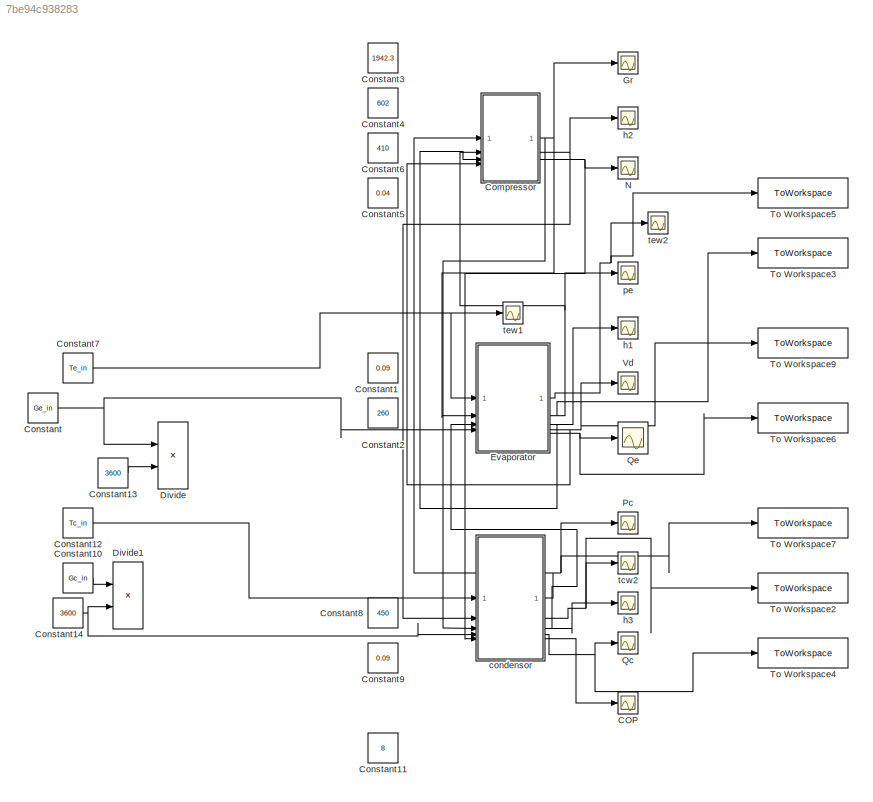
MODEL slx_7be94c938283
KIND model
CONFIG AbsTol = auto
CONFIG EnableMultiTasking = off
CONFIG FixedStep = 0.5
CONFIG MaxStep = auto
CONFIG MinStep = auto
CONFIG RelTol = 1e-3
CONFIG SampleTimeConstraint = Unconstrained
CONFIG SolverName = VariableStepAuto
CONFIG StartTime = 0.0
CONFIG StopTime = 100.0
WORKSPACE source: mxarray member
WORKSPACE c: Simulink.Parameter (value not decoded)
BLOCK [Scope] COP
  Floating = off
  NumInputPorts = 1
  ScopeSpecificationString = Simulink.scopes.TimeScopeBlockCfg('CurrentConfiguration', extmgr.ConfigurationSet(extmgr.Configuration('Core','General UI',true),extmgr.Configuration('Core','Source UI',true),extmgr.Configuration('Sources','WiredSimulink',true,'DataLoggingVariableName','ScopeData8'),extmgr.Configuration('Visuals','Time Domain',true,'SerializedDisplays',{struct('MinYLimReal','3.29992','MaxYLimReal','7.65139','YLabe...<+1416ch>
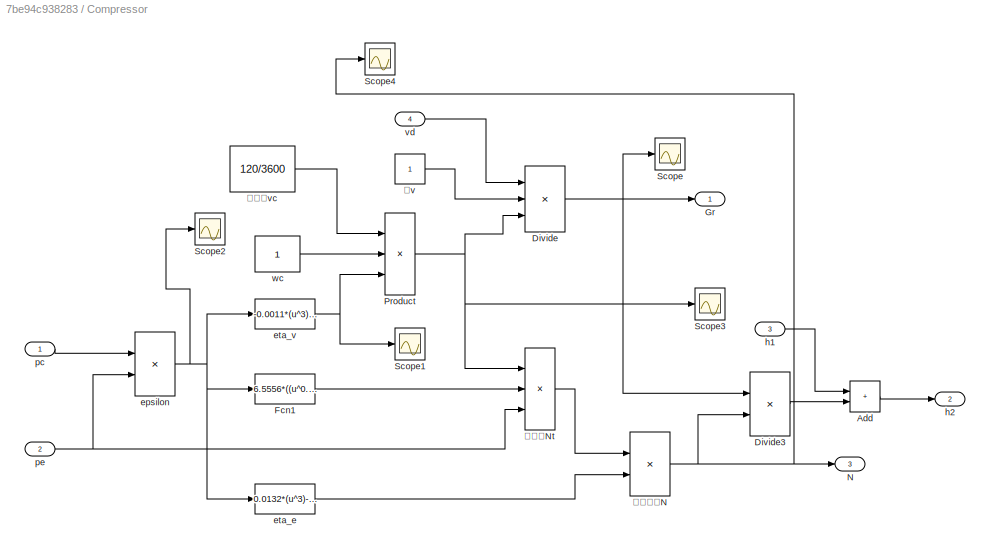
BLOCK [SubSystem] Compressor
BLOCK [Sum] Compressor/Add
  IconShape = rectangular
BLOCK [Product] Compressor/Divide
  Inputs = //*
BLOCK [Product] Compressor/Divide3
  Inputs = /*
BLOCK [Fcn] Compressor/Fcn1
  Expr = 6.5556*((u^0.1525)-1)
BLOCK [Outport] Compressor/Gr
BLOCK [Outport] Compressor/N
  Port = 3
BLOCK [Product] Compressor/Product
  Inputs = 3
BLOCK [Scope] Compressor/Scope
  Floating = off
  NumInputPorts = 1
  ScopeSpecificationString = Simulink.scopes.TimeScopeBlockCfg('CurrentConfiguration', extmgr.ConfigurationSet(extmgr.Configuration('Core','General UI',true),extmgr.Configuration('Core','Source UI',true),extmgr.Configuration('Sources','WiredSimulink',true,'DataLoggingVariableName','ScopeData6'),extmgr.Configuration('Visuals','Time Domain',true,'SerializedDisplays',{struct('MinYLimReal','0.05827','MaxYLimReal','0.25827','YLabe...<+1440ch>
BLOCK [Scope] Compressor/Scope1
  Floating = off
  NumInputPorts = 1
  ScopeSpecificationString = Simulink.scopes.TimeScopeBlockCfg('CurrentConfiguration', extmgr.ConfigurationSet(extmgr.Configuration('Core','General UI',true),extmgr.Configuration('Core','Source UI',true),extmgr.Configuration('Sources','WiredSimulink',true,'DataLoggingVariableName','ScopeData7'),extmgr.Configuration('Visuals','Time Domain',true,'SerializedDisplays',{struct('MinYLimReal','0.77772','MaxYLimReal','0.92904','YLabe...<+1381ch>
BLOCK [Scope] Compressor/Scope2
  Floating = off
  NumInputPorts = 1
  ScopeSpecificationString = Simulink.scopes.TimeScopeBlockCfg('CurrentConfiguration', extmgr.ConfigurationSet(extmgr.Configuration('Core','General UI',true),extmgr.Configuration('Core','Source UI',true),extmgr.Configuration('Sources','WiredSimulink',true,'DataLoggingVariableName','ScopeData15'),extmgr.Configuration('Visuals','Time Domain',true,'SerializedDisplays',{struct('MinYLimReal','0','MaxYLimReal','3','YLabelReal','','...<+1389ch>
BLOCK [Scope] Compressor/Scope3
  Floating = off
  NumInputPorts = 1
  ScopeSpecificationString = Simulink.scopes.TimeScopeBlockCfg('CurrentConfiguration', extmgr.ConfigurationSet(extmgr.Configuration('Core','General UI',true),extmgr.Configuration('Core','Source UI',true),extmgr.Configuration('Sources','WiredSimulink',true,'DataLoggingVariableName','ScopeData16'),extmgr.Configuration('Visuals','Time Domain',true,'SerializedDisplays',{struct('MinYLimReal','0','MaxYLimReal','0.1','YLabelReal',''...<+1392ch>
BLOCK [Scope] Compressor/Scope4
  Floating = off
  NumInputPorts = 1
  ScopeSpecificationString = Simulink.scopes.TimeScopeBlockCfg('CurrentConfiguration', extmgr.ConfigurationSet(extmgr.Configuration('Core','General UI',true),extmgr.Configuration('Core','Source UI',true),extmgr.Configuration('Sources','WiredSimulink',true,'DataLoggingVariableName','ScopeData1'),extmgr.Configuration('Visuals','Time Domain',true,'SerializedDisplays',{struct('MinYLimReal','-1.44659','MaxYLimReal','13.0193','YLab...<+1399ch>
BLOCK [Product] Compressor/epsilon
  Inputs = */
BLOCK [Fcn] Compressor/eta_e
  Expr = 0.0132*(u^3)-0.1677*(u^2)+0.6499*u-0.0924
BLOCK [Fcn] Compressor/eta_v
  Expr = -0.0011*(u^3)+0.0105*u*u-0.0539*u+1.0132
BLOCK [Inport] Compressor/h1
  Port = 3
BLOCK [Outport] Compressor/h2
  Port = 2
BLOCK [Inport] Compressor/pc
BLOCK [Inport] Compressor/pe
  Port = 2
BLOCK [Inport] Compressor/vd
  Port = 4
BLOCK [Constant] Compressor/wc
BLOCK [Constant] Compressor/入v
BLOCK [Product] Compressor/实际功率N
  Inputs = */
BLOCK [Constant] Compressor/排气量vc
  Value = 120/3600
BLOCK [Product] Compressor/轴功率Nt
  Inputs = 3
BLOCK [Constant] Constant
  Value = Ge_in
BLOCK [Constant] Constant1
  Value = 0.09
BLOCK [Constant] Constant10
  Value = Gc_in
BLOCK [Constant] Constant11
  Value = 8
BLOCK [Constant] Constant12
  Value = Tc_in
BLOCK [Constant] Constant13
  Value = 3600
BLOCK [Constant] Constant14
  Value = 3600
BLOCK [Constant] Constant2
  Value = 260
BLOCK [Constant] Constant3
  Value = 1942.3
BLOCK [Constant] Constant4
  Value = 602
BLOCK [Constant] Constant5
  Value = 0.04
BLOCK [Constant] Constant6
  Value = 410
BLOCK [Constant] Constant7
  Value = Te_in
BLOCK [Constant] Constant8
  Value = 450
BLOCK [Constant] Constant9
  Value = 0.09
BLOCK [Product] Divide
  Inputs = */
BLOCK [Product] Divide1
  Inputs = */
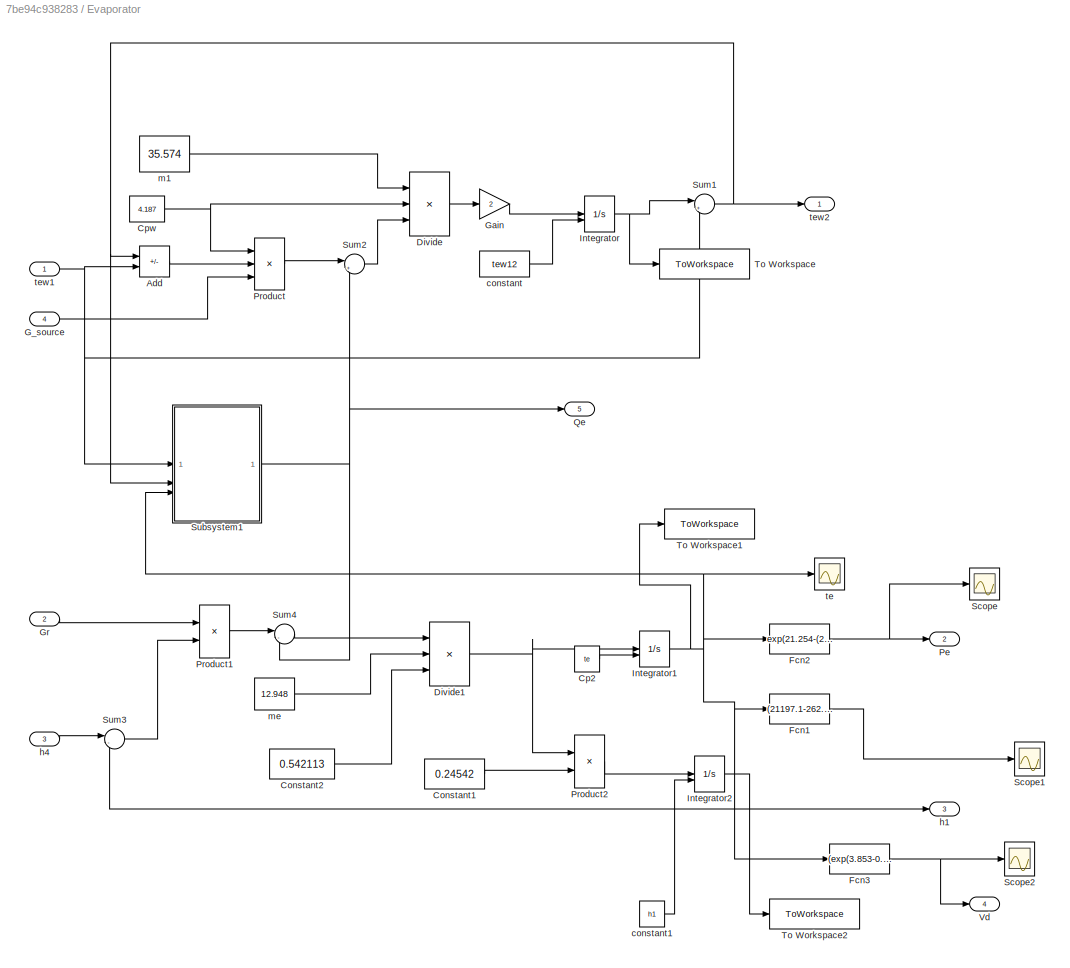
BLOCK [SubSystem] Evaporator
BLOCK [Sum] Evaporator/Add
  IconShape = rectangular
  Inputs = -+
BLOCK [Constant] Evaporator/Constant1
  Value = 0.24542
BLOCK [Constant] Evaporator/Constant2
  Value = 0.542113
BLOCK [Constant] Evaporator/Cp2
  Value = te
BLOCK [Constant] Evaporator/Cpw
  Value = 4.187
BLOCK [Product] Evaporator/Divide
  Inputs = //*
BLOCK [Product] Evaporator/Divide1
  Inputs = *//
BLOCK [Fcn] Evaporator/Fcn1
  Expr = (21197.1-262.9*u+1.232*(u^2)-0.0026*(u^3)+(2.033*exp(-6))*(u^4))*10^(-6)
BLOCK [Fcn] Evaporator/Fcn2
  Expr = exp(21.254-(2025.452/(u+248.94)))*10^(-3)
BLOCK [Fcn] Evaporator/Fcn3
  Expr = (exp(3.853-0.031563*u+10.3312*(10^(-5))*(u^2)-6.2779*(10^(-7))*(u^3)+1.374867*(10^(-9))*(u^4)-2.07723*(10^(-11))*(u^5)))*10^(-3)
BLOCK [Inport] Evaporator/G_source
  Port = 4
BLOCK [Gain] Evaporator/Gain
  Gain = 2
BLOCK [Inport] Evaporator/Gr
  Port = 2
BLOCK [Integrator] Evaporator/Integrator
  InitialConditionSource = external
BLOCK [Integrator] Evaporator/Integrator1
  InitialConditionSource = external
BLOCK [Integrator] Evaporator/Integrator2
  InitialConditionSource = external
BLOCK [Outport] Evaporator/Pe
  Port = 2
BLOCK [Product] Evaporator/Product
  Inputs = 3
BLOCK [Product] Evaporator/Product1
BLOCK [Product] Evaporator/Product2
BLOCK [Outport] Evaporator/Qe
  Port = 5
BLOCK [Scope] Evaporator/Scope
  Floating = off
  NumInputPorts = 1
  ScopeSpecificationString = Simulink.scopes.TimeScopeBlockCfg('CurrentConfiguration', extmgr.ConfigurationSet(extmgr.Configuration('Core','General UI',true),extmgr.Configuration('Core','Source UI',true),extmgr.Configuration('Sources','WiredSimulink',true,'DataLoggingVariableName','ScopeData8'),extmgr.Configuration('Visuals','Time Domain',true,'SerializedDisplays',{struct('MinYLimReal','578.7369','MaxYLimReal','632.76465','YL...<+1373ch>
BLOCK [Scope] Evaporator/Scope1
  Floating = off
  NumInputPorts = 1
  ScopeSpecificationString = Simulink.scopes.TimeScopeBlockCfg('CurrentConfiguration', extmgr.ConfigurationSet(extmgr.Configuration('Core','General UI',true),extmgr.Configuration('Core','Source UI',true),extmgr.Configuration('Sources','WiredSimulink',true,'DataLoggingVariableName','ScopeData10'),extmgr.Configuration('Visuals','Time Domain',true,'SerializedDisplays',{struct('MinYLimReal','0.01962','MaxYLimReal','0.02032','YLab...<+1381ch>
BLOCK [Scope] Evaporator/Scope2
  Floating = off
  NumInputPorts = 1
  ScopeSpecificationString = Simulink.scopes.TimeScopeBlockCfg('CurrentConfiguration', extmgr.ConfigurationSet(extmgr.Configuration('Core','General UI',true),extmgr.Configuration('Core','Source UI',true),extmgr.Configuration('Sources','WiredSimulink',true,'DataLoggingVariableName','ScopeData2'),extmgr.Configuration('Visuals','Time Domain',true,'SerializedDisplays',{struct('MinYLimReal','0.03718','MaxYLimReal','0.04242','YLabe...<+1380ch>
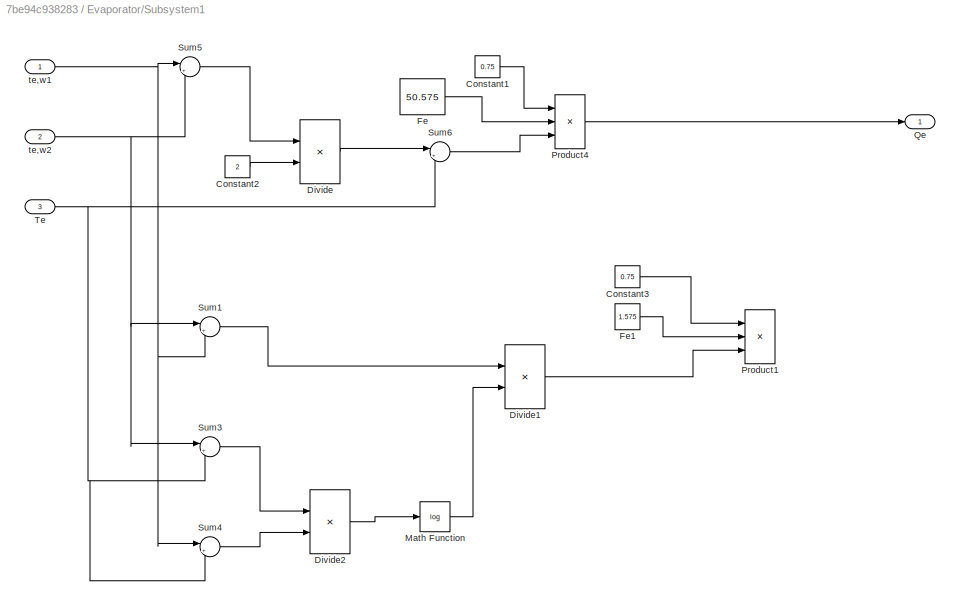
BLOCK [SubSystem] Evaporator/Subsystem1
BLOCK [Constant] Evaporator/Subsystem1/Constant1
  Value = 0.75
BLOCK [Constant] Evaporator/Subsystem1/Constant2
  Value = 2
BLOCK [Constant] Evaporator/Subsystem1/Constant3
  Value = 0.75
BLOCK [Product] Evaporator/Subsystem1/Divide
  Inputs = */
BLOCK [Product] Evaporator/Subsystem1/Divide1
  Inputs = */
BLOCK [Product] Evaporator/Subsystem1/Divide2
  Inputs = */
BLOCK [Constant] Evaporator/Subsystem1/Fe
  Value = 50.575
BLOCK [Constant] Evaporator/Subsystem1/Fe1
  Value = 1.575
BLOCK [Math] Evaporator/Subsystem1/Math Function
  Operator = log
BLOCK [Product] Evaporator/Subsystem1/Product1
  Inputs = 3
BLOCK [Product] Evaporator/Subsystem1/Product4
  Inputs = 3
BLOCK [Outport] Evaporator/Subsystem1/Qe
BLOCK [Sum] Evaporator/Subsystem1/Sum1
  Inputs = |+-
BLOCK [Sum] Evaporator/Subsystem1/Sum3
  Inputs = |+-
BLOCK [Sum] Evaporator/Subsystem1/Sum4
  Inputs = |+-
BLOCK [Sum] Evaporator/Subsystem1/Sum5
  Inputs = |++
BLOCK [Sum] Evaporator/Subsystem1/Sum6
  Inputs = |+-
BLOCK [Inport] Evaporator/Subsystem1/Te
  Port = 3
BLOCK [Inport] Evaporator/Subsystem1/te,w1
BLOCK [Inport] Evaporator/Subsystem1/te,w2
  Port = 2
BLOCK [Sum] Evaporator/Sum1
  Inputs = |+-
BLOCK [Sum] Evaporator/Sum2
  Inputs = |+-
BLOCK [Sum] Evaporator/Sum3
  Inputs = |-+
BLOCK [Sum] Evaporator/Sum4
  Inputs = |-+
BLOCK [ToWorkspace] Evaporator/To Workspace
  FixptAsFi = on
  MaxDataPoints = inf
  SampleTime = -1
  SaveFormat = Timeseries
  VariableName = tew12
BLOCK [ToWorkspace] Evaporator/To Workspace1
  FixptAsFi = on
  MaxDataPoints = inf
  SampleTime = -1
  SaveFormat = Timeseries
  VariableName = te
BLOCK [ToWorkspace] Evaporator/To Workspace2
  FixptAsFi = on
  MaxDataPoints = inf
  SampleTime = -1
  SaveFormat = Timeseries
  VariableName = h1
BLOCK [Outport] Evaporator/Vd
  Port = 4
BLOCK [Constant] Evaporator/constant
  Value = tew12
BLOCK [Constant] Evaporator/constant1
  Value = h1
BLOCK [Outport] Evaporator/h1
  Port = 3
BLOCK [Inport] Evaporator/h4
  Port = 3
BLOCK [Constant] Evaporator/m1
  Value = 35.574
BLOCK [Constant] Evaporator/me
  Value = 12.948
BLOCK [Scope] Evaporator/te
  Floating = off
  NumInputPorts = 1
  ScopeSpecificationString = Simulink.scopes.TimeScopeBlockCfg('CurrentConfiguration', extmgr.ConfigurationSet(extmgr.Configuration('Core','General UI',true),extmgr.Configuration('Core','Source UI',true),extmgr.Configuration('Sources','WiredSimulink',true,'DataLoggingVariableName','ScopeData1'),extmgr.Configuration('Visuals','Time Domain',true,'SerializedDisplays',{struct('MinYLimReal','4.64247','MaxYLimReal','8.21777','YLabe...<+1368ch>
BLOCK [Inport] Evaporator/tew1
BLOCK [Outport] Evaporator/tew2
BLOCK [Scope] Gr
  Floating = off
  NumInputPorts = 1
  ScopeSpecificationString = Simulink.scopes.TimeScopeBlockCfg('CurrentConfiguration', extmgr.ConfigurationSet(extmgr.Configuration('Core','General UI',true),extmgr.Configuration('Core','Source UI',true),extmgr.Configuration('Sources','WiredSimulink',true,'DataLoggingVariableName','ScopeData1'),extmgr.Configuration('Visuals','Time Domain',true,'SerializedDisplays',{struct('MinYLimReal','0.05827','MaxYLimReal','0.25827','YLabe...<+1452ch>
BLOCK [Scope] N
  Floating = off
  NumInputPorts = 1
  ScopeSpecificationString = Simulink.scopes.TimeScopeBlockCfg('CurrentConfiguration', extmgr.ConfigurationSet(extmgr.Configuration('Core','General UI',true),extmgr.Configuration('Core','Source UI',true),extmgr.Configuration('Sources','WiredSimulink',true,'DataLoggingVariableName','ScopeData3'),extmgr.Configuration('Visuals','Time Domain',true,'SerializedDisplays',{struct('MinYLimReal','19.90732','MaxYLimReal','43.11033','YLa...<+1461ch>
BLOCK [Scope] Pc
  Floating = off
  NumInputPorts = 1
  ScopeSpecificationString = Simulink.scopes.TimeScopeBlockCfg('CurrentConfiguration', extmgr.ConfigurationSet(extmgr.Configuration('Core','General UI',true),extmgr.Configuration('Core','Source UI',true),extmgr.Configuration('Sources','WiredSimulink',true,'DataLoggingVariableName','ScopeData4'),extmgr.Configuration('Visuals','Time Domain',true,'SerializedDisplays',{struct('MinYLimReal','1568.47913','MaxYLimReal','5290.57392',...<+1441ch>
BLOCK [Scope] Qc
  Floating = off
  NumInputPorts = 1
  ScopeSpecificationString = Simulink.scopes.TimeScopeBlockCfg('CurrentConfiguration', extmgr.ConfigurationSet(extmgr.Configuration('Core','General UI',true),extmgr.Configuration('Core','Source UI',true),extmgr.Configuration('Sources','WiredSimulink',true,'DataLoggingVariableName','ScopeData7'),extmgr.Configuration('Visuals','Time Domain',true,'SerializedDisplays',{struct('MinYLimReal','177.72311','MaxYLimReal','247.58632','Y...<+1431ch>
BLOCK [Scope] Qe
  Floating = off
  NumInputPorts = 1
  ScopeSpecificationString = Simulink.scopes.TimeScopeBlockCfg('CurrentConfiguration', extmgr.ConfigurationSet(extmgr.Configuration('Core','General UI',true),extmgr.Configuration('Core','Source UI',true),extmgr.Configuration('Sources','WiredSimulink',true,'DataLoggingVariableName','ScopeData5'),extmgr.Configuration('Visuals','Time Domain',true,'SerializedDisplays',{struct('MinYLimReal','128.50093','MaxYLimReal','365.03462','Y...<+1434ch>
BLOCK [ToWorkspace] To Workspace2
  FixptAsFi = on
  MaxDataPoints = inf
  SampleTime = -1
  SaveFormat = Timeseries
  VariableName = tcw2
BLOCK [ToWorkspace] To Workspace3
  FixptAsFi = on
  MaxDataPoints = inf
  SampleTime = -1
  SaveFormat = Timeseries
  VariableName = pe
BLOCK [ToWorkspace] To Workspace4
  FixptAsFi = on
  MaxDataPoints = inf
  SampleTime = -1
  SaveFormat = Timeseries
  VariableName = Qc
BLOCK [ToWorkspace] To Workspace5
  FixptAsFi = on
  MaxDataPoints = inf
  SampleTime = -1
  SaveFormat = Timeseries
  VariableName = tew2
BLOCK [ToWorkspace] To Workspace6
  FixptAsFi = on
  MaxDataPoints = inf
  SampleTime = -1
  SaveFormat = Timeseries
  VariableName = Qe
BLOCK [ToWorkspace] To Workspace7
  FixptAsFi = on
  MaxDataPoints = inf
  SampleTime = -1
  SaveFormat = Timeseries
  VariableName = pc
BLOCK [ToWorkspace] To Workspace9
  FixptAsFi = on
  MaxDataPoints = inf
  SampleTime = -1
  SaveFormat = Timeseries
  VariableName = vd
BLOCK [Scope] Vd
  Floating = off
  NumInputPorts = 1
  ScopeSpecificationString = Simulink.scopes.TimeScopeBlockCfg('CurrentConfiguration', extmgr.ConfigurationSet(extmgr.Configuration('Core','General UI',true),extmgr.Configuration('Core','Source UI',true),extmgr.Configuration('Sources','WiredSimulink',true,'DataLoggingVariableName','ScopeData6'),extmgr.Configuration('Visuals','Time Domain',true,'SerializedDisplays',{struct('MinYLimReal','0.03863','MaxYLimReal','0.04055','YLabe...<+1418ch>
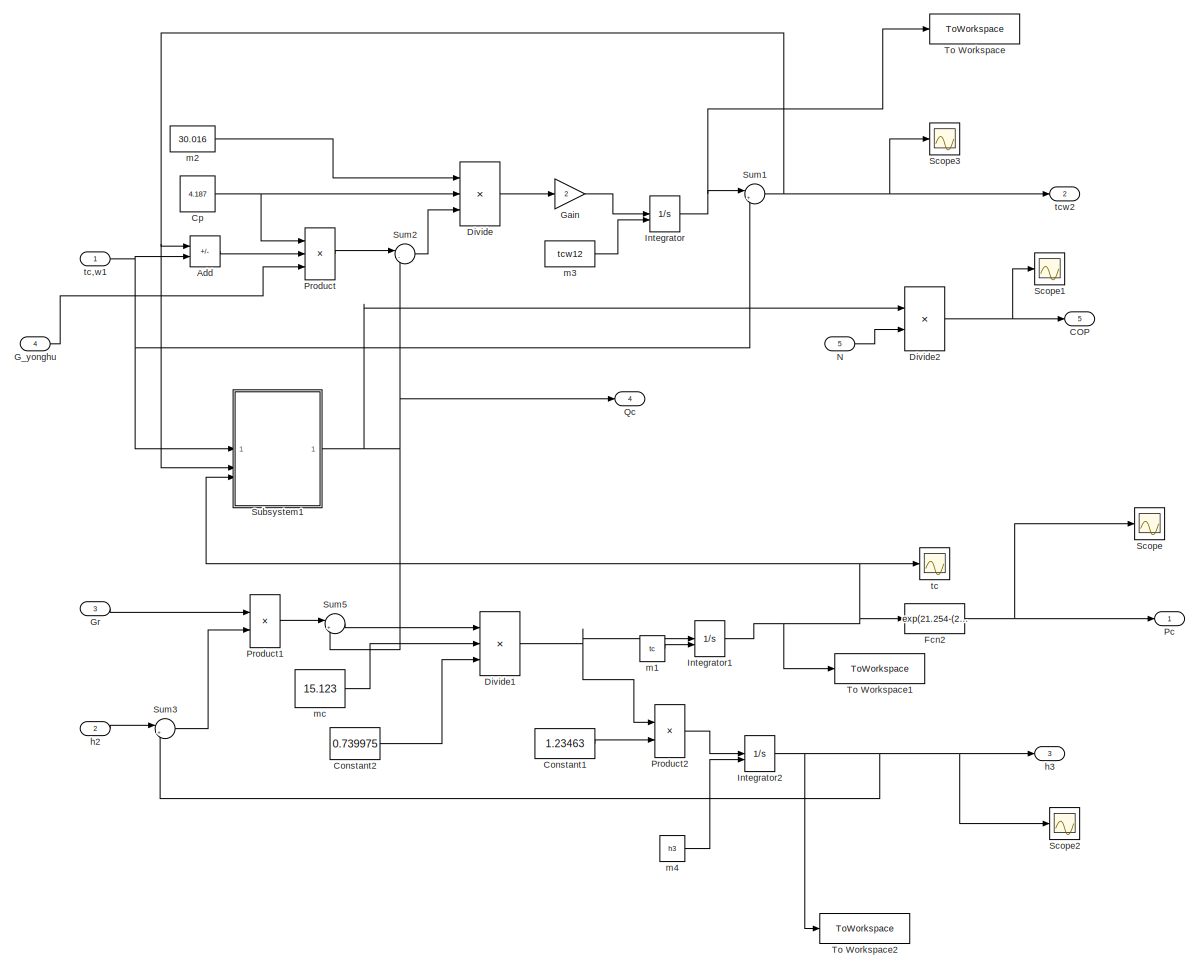
[diagram: condensor - part 1/1, most of the canvas]
BLOCK [SubSystem] condensor
BLOCK [Sum] condensor/Add
  IconShape = rectangular
  Inputs = +-
BLOCK [Outport] condensor/COP
  Port = 5
BLOCK [Constant] condensor/Constant1
  Value = 1.23463
BLOCK [Constant] condensor/Constant2
  Value = 0.739975
BLOCK [Constant] condensor/Cp
  Value = 4.187
BLOCK [Product] condensor/Divide
  Inputs = //*
BLOCK [Product] condensor/Divide1
  Inputs = *//
BLOCK [Product] condensor/Divide2
  Inputs = */
BLOCK [Fcn] condensor/Fcn2
  Expr = exp(21.254-(2025.452/(u+248.94)))*10^(-3)
BLOCK [Inport] condensor/G_yonghu
  Port = 4
BLOCK [Gain] condensor/Gain
  Gain = 2
BLOCK [Inport] condensor/Gr
  Port = 3
BLOCK [Integrator] condensor/Integrator
  InitialConditionSource = external
BLOCK [Integrator] condensor/Integrator1
  InitialConditionSource = external
BLOCK [Integrator] condensor/Integrator2
  InitialConditionSource = external
BLOCK [Inport] condensor/N
  Port = 5
BLOCK [Outport] condensor/Pc
BLOCK [Product] condensor/Product
  Inputs = 3
BLOCK [Product] condensor/Product1
BLOCK [Product] condensor/Product2
BLOCK [Outport] condensor/Qc
  Port = 4
BLOCK [Scope] condensor/Scope
  Floating = off
  NumInputPorts = 1
  ScopeSpecificationString = Simulink.scopes.TimeScopeBlockCfg('CurrentConfiguration', extmgr.ConfigurationSet(extmgr.Configuration('Core','General UI',true),extmgr.Configuration('Core','Source UI',true),extmgr.Configuration('Sources','WiredSimulink',true,'DataLoggingVariableName','ScopeData9'),extmgr.Configuration('Visuals','Time Domain',true,'SerializedDisplays',{struct('MinYLimReal','77.56772','MaxYLimReal','5143.28731','Y...<+1377ch>
BLOCK [Scope] condensor/Scope1
  Floating = off
  NumInputPorts = 1
  ScopeSpecificationString = Simulink.scopes.TimeScopeBlockCfg('CurrentConfiguration', extmgr.ConfigurationSet(extmgr.Configuration('Core','General UI',true),extmgr.Configuration('Core','Source UI',true),extmgr.Configuration('Sources','WiredSimulink',true,'DataLoggingVariableName','ScopeData3'),extmgr.Configuration('Visuals','Time Domain',true,'SerializedDisplays',{struct('MinYLimReal','-8.47856','MaxYLimReal','4.40626','YLab...<+1366ch>
BLOCK [Scope] condensor/Scope2
  Floating = off
  NumInputPorts = 1
  ScopeSpecificationString = Simulink.scopes.TimeScopeBlockCfg('CurrentConfiguration', extmgr.ConfigurationSet(extmgr.Configuration('Core','General UI',true),extmgr.Configuration('Core','Source UI',true),extmgr.Configuration('Sources','WiredSimulink',true,'DataLoggingVariableName','ScopeData4'),extmgr.Configuration('Visuals','Time Domain',true,'SerializedDisplays',{struct('MinYLimReal','246.24988','MaxYLimReal','383.75107','Y...<+1384ch>
BLOCK [Scope] condensor/Scope3
  Floating = off
  NumInputPorts = 1
  ScopeSpecificationString = Simulink.scopes.TimeScopeBlockCfg('CurrentConfiguration', extmgr.ConfigurationSet(extmgr.Configuration('Core','General UI',true),extmgr.Configuration('Core','Source UI',true),extmgr.Configuration('Sources','WiredSimulink',true,'DataLoggingVariableName','ScopeData5'),extmgr.Configuration('Visuals','Time Domain',true,'SerializedDisplays',{struct('MinYLimReal','-23.3674','MaxYLimReal','53.7378','YLab...<+1363ch>
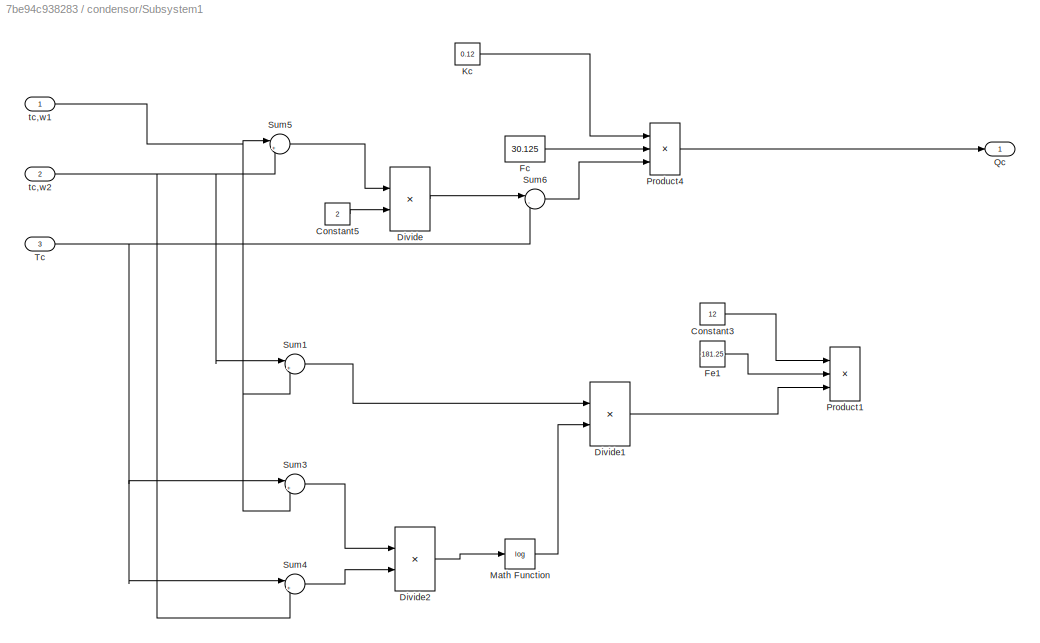
BLOCK [SubSystem] condensor/Subsystem1
BLOCK [Constant] condensor/Subsystem1/Constant3
  Value = 12
BLOCK [Constant] condensor/Subsystem1/Constant5
  Value = 2
BLOCK [Product] condensor/Subsystem1/Divide
  Inputs = */
BLOCK [Product] condensor/Subsystem1/Divide1
  Inputs = */
BLOCK [Product] condensor/Subsystem1/Divide2
  Inputs = */
BLOCK [Constant] condensor/Subsystem1/Fc
  Value = 30.125
BLOCK [Constant] condensor/Subsystem1/Fe1
  Value = 181.25
BLOCK [Constant] condensor/Subsystem1/Kc
  Value = 0.12
BLOCK [Math] condensor/Subsystem1/Math Function
  Operator = log
BLOCK [Product] condensor/Subsystem1/Product1
  Inputs = 3
BLOCK [Product] condensor/Subsystem1/Product4
  Inputs = 3
BLOCK [Outport] condensor/Subsystem1/Qc
BLOCK [Sum] condensor/Subsystem1/Sum1
  Inputs = |+-
BLOCK [Sum] condensor/Subsystem1/Sum3
  Inputs = |+-
BLOCK [Sum] condensor/Subsystem1/Sum4
  Inputs = |+-
BLOCK [Sum] condensor/Subsystem1/Sum5
  Inputs = |++
BLOCK [Sum] condensor/Subsystem1/Sum6
  Inputs = |-+
BLOCK [Inport] condensor/Subsystem1/Tc
  Port = 3
BLOCK [Inport] condensor/Subsystem1/tc,w1
BLOCK [Inport] condensor/Subsystem1/tc,w2
  Port = 2
BLOCK [Sum] condensor/Sum1
  Inputs = |+-
BLOCK [Sum] condensor/Sum2
  Inputs = |-+
BLOCK [Sum] condensor/Sum3
  Inputs = |+-
BLOCK [Sum] condensor/Sum5
  Inputs = |+-
BLOCK [ToWorkspace] condensor/To Workspace
  FixptAsFi = on
  MaxDataPoints = inf
  SampleTime = -1
  SaveFormat = Timeseries
  VariableName = tcw12
BLOCK [ToWorkspace] condensor/To Workspace1
  FixptAsFi = on
  MaxDataPoints = inf
  SampleTime = -1
  SaveFormat = Timeseries
  VariableName = tc
BLOCK [ToWorkspace] condensor/To Workspace2
  FixptAsFi = on
  MaxDataPoints = inf
  SampleTime = -1
  SaveFormat = Timeseries
  VariableName = h3
BLOCK [Inport] condensor/h2
  Port = 2
BLOCK [Outport] condensor/h3
  Port = 3
BLOCK [Constant] condensor/m1
  Value = tc
BLOCK [Constant] condensor/m2
  Value = 30.016
BLOCK [Constant] condensor/m3
  Value = tcw12
BLOCK [Constant] condensor/m4
  Value = h3
BLOCK [Constant] condensor/mc
  Value = 15.123
BLOCK [Scope] condensor/tc
  Floating = off
  NumInputPorts = 1
  ScopeSpecificationString = Simulink.scopes.TimeScopeBlockCfg('CurrentConfiguration', extmgr.ConfigurationSet(extmgr.Configuration('Core','General UI',true),extmgr.Configuration('Core','Source UI',true),extmgr.Configuration('Sources','WiredSimulink',true),extmgr.Configuration('Visuals','Time Domain',true,'SerializedDisplays',{struct('MinYLimReal','44.88013','MaxYLimReal','96.07882','YLabelReal','','MinYLimMag','44.88013','Ma...<+1356ch>
BLOCK [Inport] condensor/tc,w1
BLOCK [Outport] condensor/tcw2
  Port = 2
BLOCK [Scope] h1
  Floating = off
  NumInputPorts = 1
  ScopeSpecificationString = Simulink.scopes.TimeScopeBlockCfg('CurrentConfiguration', extmgr.ConfigurationSet(extmgr.Configuration('Core','General UI',true),extmgr.Configuration('Core','Source UI',true),extmgr.Configuration('Sources','WiredSimulink',true,'DataLoggingVariableName','ScopeData1'),extmgr.Configuration('Visuals','Time Domain',true,'SerializedDisplays',{struct('MinYLimReal','499.59331','MaxYLimReal','500.65506','Y...<+1446ch>
BLOCK [Scope] h2
  Floating = off
  NumInputPorts = 1
  ScopeSpecificationString = Simulink.scopes.TimeScopeBlockCfg('CurrentConfiguration', extmgr.ConfigurationSet(extmgr.Configuration('Core','General UI',true),extmgr.Configuration('Core','Source UI',true),extmgr.Configuration('Sources','WiredSimulink',true,'DataLoggingVariableName','ScopeData2'),extmgr.Configuration('Visuals','Time Domain',true,'SerializedDisplays',{struct('MinYLimReal','540.16512','MaxYLimReal','582.22521','Y...<+1469ch>
BLOCK [Scope] h3
  Floating = off
  NumInputPorts = 1
  ScopeSpecificationString = Simulink.scopes.TimeScopeBlockCfg('CurrentConfiguration', extmgr.ConfigurationSet(extmgr.Configuration('Core','General UI',true),extmgr.Configuration('Core','Source UI',true),extmgr.Configuration('Sources','WiredSimulink',true,'DataLoggingVariableName','ScopeData5'),extmgr.Configuration('Visuals','Time Domain',true,'SerializedDisplays',{struct('MinYLimReal','255.14162','MaxYLimReal','303.72541','Y...<+1433ch>
BLOCK [Scope] pe
  Floating = off
  NumInputPorts = 1
  ScopeSpecificationString = Simulink.scopes.TimeScopeBlockCfg('CurrentConfiguration', extmgr.ConfigurationSet(extmgr.Configuration('Core','General UI',true),extmgr.Configuration('Core','Source UI',true),extmgr.Configuration('Sources','WiredSimulink',true,'DataLoggingVariableName','ScopeData11'),extmgr.Configuration('Visuals','Time Domain',true,'SerializedDisplays',{struct('MinYLimReal','554244.29634','MaxYLimReal','623235.84...<+1467ch>
BLOCK [Scope] tcw2
  Floating = off
  NumInputPorts = 1
  ScopeSpecificationString = Simulink.scopes.TimeScopeBlockCfg('CurrentConfiguration', extmgr.ConfigurationSet(extmgr.Configuration('Core','General UI',true),extmgr.Configuration('Core','Source UI',true),extmgr.Configuration('Sources','WiredSimulink',true,'DataLoggingVariableName','ScopeData6'),extmgr.Configuration('Visuals','Time Domain',true,'SerializedDisplays',{struct('MinYLimReal','-28.1482','MaxYLimReal','103.33384','YL...<+1478ch>
BLOCK [Scope] tew1
  Floating = off
  NumInputPorts = 1
  ScopeSpecificationString = Simulink.scopes.TimeScopeBlockCfg('CurrentConfiguration', extmgr.ConfigurationSet(extmgr.Configuration('Core','General UI',true),extmgr.Configuration('Core','Source UI',true),extmgr.Configuration('Sources','WiredSimulink',true,'DataLoggingVariableName','ScopeData14'),extmgr.Configuration('Visuals','Time Domain',true,'SerializedDisplays',{struct('MinYLimReal','8.75265','MaxYLimReal','21.24626','YLa...<+1431ch>
BLOCK [Scope] tew2
  Floating = off
  NumInputPorts = 1
  ScopeSpecificationString = Simulink.scopes.TimeScopeBlockCfg('CurrentConfiguration', extmgr.ConfigurationSet(extmgr.Configuration('Core','General UI',true),extmgr.Configuration('Core','Source UI',true),extmgr.Configuration('Sources','WiredSimulink',true,'DataLoggingVariableName','ScopeData15'),extmgr.Configuration('Visuals','Time Domain',true,'SerializedDisplays',{struct('MinYLimReal','7.15068','MaxYLimReal','10.68955','YLa...<+1422ch>
LINE Compressor/Add:1 -> Compressor/h2:1
LINE Compressor/Divide3:1 -> Compressor/Add:2
NET Compressor/Divide:1 -> Compressor/Divide3:1, Compressor/Gr:1, Compressor/Scope:1
LINE Compressor/Fcn1:1 -> Compressor/轴功率Nt:2
NET Compressor/Product:1 -> Compressor/Divide:3, Compressor/Scope3:1, Compressor/轴功率Nt:1
NET Compressor/epsilon:1 -> Compressor/Fcn1:1, Compressor/Scope2:1, Compressor/eta_e:1, Compressor/eta_v:1
LINE Compressor/eta_e:1 -> Compressor/实际功率N:2
NET Compressor/eta_v:1 -> Compressor/Product:3, Compressor/Scope1:1
LINE Compressor/h1:1 -> Compressor/Add:1
LINE Compressor/pc:1 -> Compressor/epsilon:1
NET Compressor/pe:1 -> Compressor/epsilon:2, Compressor/轴功率Nt:3
LINE Compressor/vd:1 -> Compressor/Divide:1
LINE Compressor/wc:1 -> Compressor/Product:2
LINE Compressor/入v:1 -> Compressor/Divide:2
NET Compressor/实际功率N:1 -> Compressor/Divide3:2, Compressor/N:1, Compressor/Scope4:1
LINE Compressor/排气量vc:1 -> Compressor/Product:1
LINE Compressor/轴功率Nt:1 -> Compressor/实际功率N:1
NET Compressor:1 -> Evaporator:2, Gr:1, condensor:3
NET Compressor:2 -> condensor:2, h2:1
NET Compressor:3 -> N:1, condensor:5
LINE Constant10:1 -> Divide1:1
LINE Constant12:1 -> condensor:1
LINE Constant13:1 -> Divide:2
NET Constant14:1 -> Divide1:2, condensor:4
NET Constant7:1 -> Evaporator:1, tew1:1
NET Constant:1 -> Divide:1, Evaporator:4
LINE Evaporator/Add:1 -> Evaporator/Product:2
LINE Evaporator/Constant1:1 -> Evaporator/Product2:2
LINE Evaporator/Constant2:1 -> Evaporator/Divide1:3
LINE Evaporator/Cp2:1 -> Evaporator/Integrator1:2
NET Evaporator/Cpw:1 -> Evaporator/Divide:2, Evaporator/Product:1
NET Evaporator/Divide1:1 -> Evaporator/Integrator1:1, Evaporator/Product2:1
LINE Evaporator/Divide:1 -> Evaporator/Gain:1
LINE Evaporator/Fcn1:1 -> Evaporator/Scope1:1
NET Evaporator/Fcn2:1 -> Evaporator/Pe:1, Evaporator/Scope:1
NET Evaporator/Fcn3:1 -> Evaporator/Scope2:1, Evaporator/Vd:1
LINE Evaporator/G_source:1 -> Evaporator/Product:3
LINE Evaporator/Gain:1 -> Evaporator/Integrator:1
LINE Evaporator/Gr:1 -> Evaporator/Product1:1
NET Evaporator/Integrator1:1 -> Evaporator/Fcn1:1, Evaporator/Fcn2:1, Evaporator/Fcn3:1, Evaporator/Subsystem1:3, Evaporator/To Workspace1:1, Evaporator/te:1
NET Evaporator/Integrator2:1 -> Evaporator/Sum3:2, Evaporator/To Workspace2:1, Evaporator/h1:1
NET Evaporator/Integrator:1 -> Evaporator/Sum1:1, Evaporator/To Workspace:1
LINE Evaporator/Product1:1 -> Evaporator/Sum4:1
LINE Evaporator/Product2:1 -> Evaporator/Integrator2:1
LINE Evaporator/Product:1 -> Evaporator/Sum2:1
LINE Evaporator/Subsystem1/Constant1:1 -> Evaporator/Subsystem1/Product4:1
LINE Evaporator/Subsystem1/Constant2:1 -> Evaporator/Subsystem1/Divide:2
LINE Evaporator/Subsystem1/Constant3:1 -> Evaporator/Subsystem1/Product1:1
LINE Evaporator/Subsystem1/Divide1:1 -> Evaporator/Subsystem1/Product1:3
LINE Evaporator/Subsystem1/Divide2:1 -> Evaporator/Subsystem1/Math Function:1
LINE Evaporator/Subsystem1/Divide:1 -> Evaporator/Subsystem1/Sum6:1
LINE Evaporator/Subsystem1/Fe1:1 -> Evaporator/Subsystem1/Product1:2
LINE Evaporator/Subsystem1/Fe:1 -> Evaporator/Subsystem1/Product4:2
LINE Evaporator/Subsystem1/Math Function:1 -> Evaporator/Subsystem1/Divide1:2
LINE Evaporator/Subsystem1/Product4:1 -> Evaporator/Subsystem1/Qe:1
LINE Evaporator/Subsystem1/Sum1:1 -> Evaporator/Subsystem1/Divide1:1
LINE Evaporator/Subsystem1/Sum3:1 -> Evaporator/Subsystem1/Divide2:1
LINE Evaporator/Subsystem1/Sum4:1 -> Evaporator/Subsystem1/Divide2:2
LINE Evaporator/Subsystem1/Sum5:1 -> Evaporator/Subsystem1/Divide:1
LINE Evaporator/Subsystem1/Sum6:1 -> Evaporator/Subsystem1/Product4:3
NET Evaporator/Subsystem1/Te:1 -> Evaporator/Subsystem1/Sum3:2, Evaporator/Subsystem1/Sum4:2, Evaporator/Subsystem1/Sum6:2
NET Evaporator/Subsystem1/te,w1:1 -> Evaporator/Subsystem1/Sum1:2, Evaporator/Subsystem1/Sum4:1, Evaporator/Subsystem1/Sum5:1
NET Evaporator/Subsystem1/te,w2:1 -> Evaporator/Subsystem1/Sum1:1, Evaporator/Subsystem1/Sum3:1, Evaporator/Subsystem1/Sum5:2
NET Evaporator/Subsystem1:1 -> Evaporator/Qe:1, Evaporator/Sum2:2, Evaporator/Sum4:2
NET Evaporator/Sum1:1 -> Evaporator/Add:1, Evaporator/Subsystem1:2, Evaporator/tew2:1
LINE Evaporator/Sum2:1 -> Evaporator/Divide:3
LINE Evaporator/Sum3:1 -> Evaporator/Product1:2
LINE Evaporator/Sum4:1 -> Evaporator/Divide1:1
LINE Evaporator/constant1:1 -> Evaporator/Integrator2:2
LINE Evaporator/constant:1 -> Evaporator/Integrator:2
LINE Evaporator/h4:1 -> Evaporator/Sum3:1
LINE Evaporator/m1:1 -> Evaporator/Divide:1
LINE Evaporator/me:1 -> Evaporator/Divide1:2
NET Evaporator/tew1:1 -> Evaporator/Add:2, Evaporator/Subsystem1:1, Evaporator/Sum1:2
NET Evaporator:1 -> To Workspace5:1, tew2:1
NET Evaporator:2 -> Compressor:2, To Workspace3:1, pe:1
NET Evaporator:3 -> Compressor:3, h1:1
NET Evaporator:4 -> Compressor:4, To Workspace9:1, Vd:1
NET Evaporator:5 -> Qe:1, To Workspace6:1
LINE condensor/Add:1 -> condensor/Product:2
LINE condensor/Constant1:1 -> condensor/Product2:2
LINE condensor/Constant2:1 -> condensor/Divide1:3
NET condensor/Cp:1 -> condensor/Divide:2, condensor/Product:1
NET condensor/Divide1:1 -> condensor/Integrator1:1, condensor/Product2:1
NET condensor/Divide2:1 -> condensor/COP:1, condensor/Scope1:1
LINE condensor/Divide:1 -> condensor/Gain:1
NET condensor/Fcn2:1 -> condensor/Pc:1, condensor/Scope:1
LINE condensor/G_yonghu:1 -> condensor/Product:3
LINE condensor/Gain:1 -> condensor/Integrator:1
LINE condensor/Gr:1 -> condensor/Product1:1
NET condensor/Integrator1:1 -> condensor/Fcn2:1, condensor/Subsystem1:3, condensor/To Workspace1:1, condensor/tc:1
NET condensor/Integrator2:1 -> condensor/Scope2:1, condensor/Sum3:2, condensor/To Workspace2:1, condensor/h3:1
NET condensor/Integrator:1 -> condensor/Sum1:1, condensor/To Workspace:1
LINE condensor/N:1 -> condensor/Divide2:2
LINE condensor/Product1:1 -> condensor/Sum5:1
LINE condensor/Product2:1 -> condensor/Integrator2:1
LINE condensor/Product:1 -> condensor/Sum2:1
LINE condensor/Subsystem1/Constant3:1 -> condensor/Subsystem1/Product1:1
LINE condensor/Subsystem1/Constant5:1 -> condensor/Subsystem1/Divide:2
LINE condensor/Subsystem1/Divide1:1 -> condensor/Subsystem1/Product1:3
LINE condensor/Subsystem1/Divide2:1 -> condensor/Subsystem1/Math Function:1
LINE condensor/Subsystem1/Divide:1 -> condensor/Subsystem1/Sum6:1
LINE condensor/Subsystem1/Fc:1 -> condensor/Subsystem1/Product4:2
LINE condensor/Subsystem1/Fe1:1 -> condensor/Subsystem1/Product1:2
LINE condensor/Subsystem1/Kc:1 -> condensor/Subsystem1/Product4:1
LINE condensor/Subsystem1/Math Function:1 -> condensor/Subsystem1/Divide1:2
LINE condensor/Subsystem1/Product4:1 -> condensor/Subsystem1/Qc:1
LINE condensor/Subsystem1/Sum1:1 -> condensor/Subsystem1/Divide1:1
LINE condensor/Subsystem1/Sum3:1 -> condensor/Subsystem1/Divide2:1
LINE condensor/Subsystem1/Sum4:1 -> condensor/Subsystem1/Divide2:2
LINE condensor/Subsystem1/Sum5:1 -> condensor/Subsystem1/Divide:1
LINE condensor/Subsystem1/Sum6:1 -> condensor/Subsystem1/Product4:3
NET condensor/Subsystem1/Tc:1 -> condensor/Subsystem1/Sum3:1, condensor/Subsystem1/Sum4:1, condensor/Subsystem1/Sum6:2
NET condensor/Subsystem1/tc,w1:1 -> condensor/Subsystem1/Sum1:2, condensor/Subsystem1/Sum3:2, condensor/Subsystem1/Sum5:1
NET condensor/Subsystem1/tc,w2:1 -> condensor/Subsystem1/Sum1:1, condensor/Subsystem1/Sum4:2, condensor/Subsystem1/Sum5:2
NET condensor/Subsystem1:1 -> condensor/Divide2:1, condensor/Qc:1, condensor/Sum2:2, condensor/Sum5:2
NET condensor/Sum1:1 -> condensor/Add:1, condensor/Scope3:1, condensor/Subsystem1:2, condensor/tcw2:1
LINE condensor/Sum2:1 -> condensor/Divide:3
LINE condensor/Sum3:1 -> condensor/Product1:2
LINE condensor/Sum5:1 -> condensor/Divide1:1
LINE condensor/h2:1 -> condensor/Sum3:1
LINE condensor/m1:1 -> condensor/Integrator1:2
LINE condensor/m2:1 -> condensor/Divide:1
LINE condensor/m3:1 -> condensor/Integrator:2
LINE condensor/m4:1 -> condensor/Integrator2:2
LINE condensor/mc:1 -> condensor/Divide1:2
NET condensor/tc,w1:1 -> condensor/Add:2, condensor/Subsystem1:1, condensor/Sum1:2
NET condensor:1 -> Compressor:1, Pc:1, To Workspace7:1
NET condensor:2 -> To Workspace2:1, tcw2:1
NET condensor:3 -> Evaporator:3, h3:1
NET condensor:4 -> Qc:1, To Workspace4:1
LINE condensor:5 -> COP:1
note: NET lines group one-source signal fan-out (src -> all destinations, sorted); 1:1 wires keep LINE
